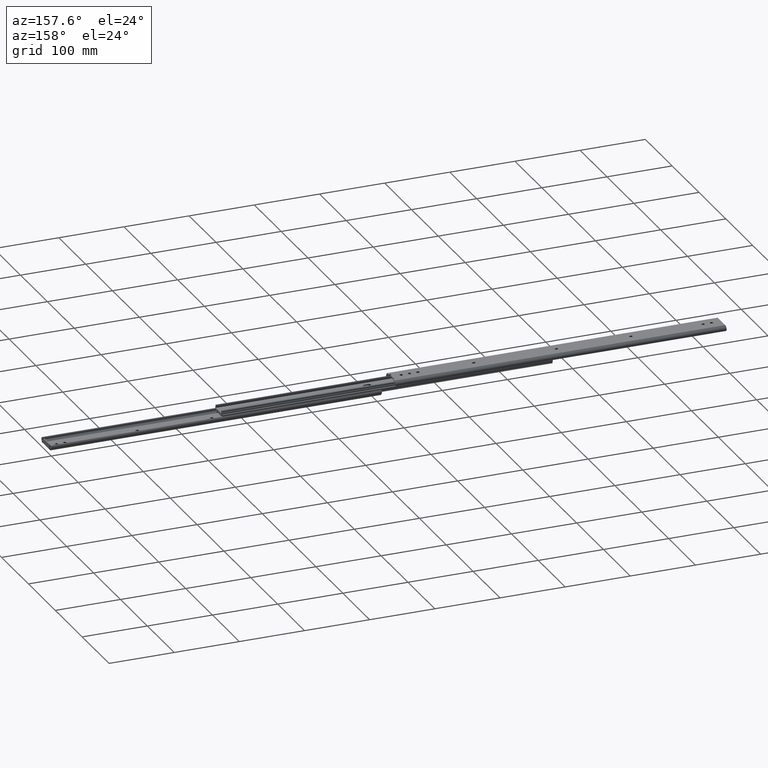
[diagram: clean part render]
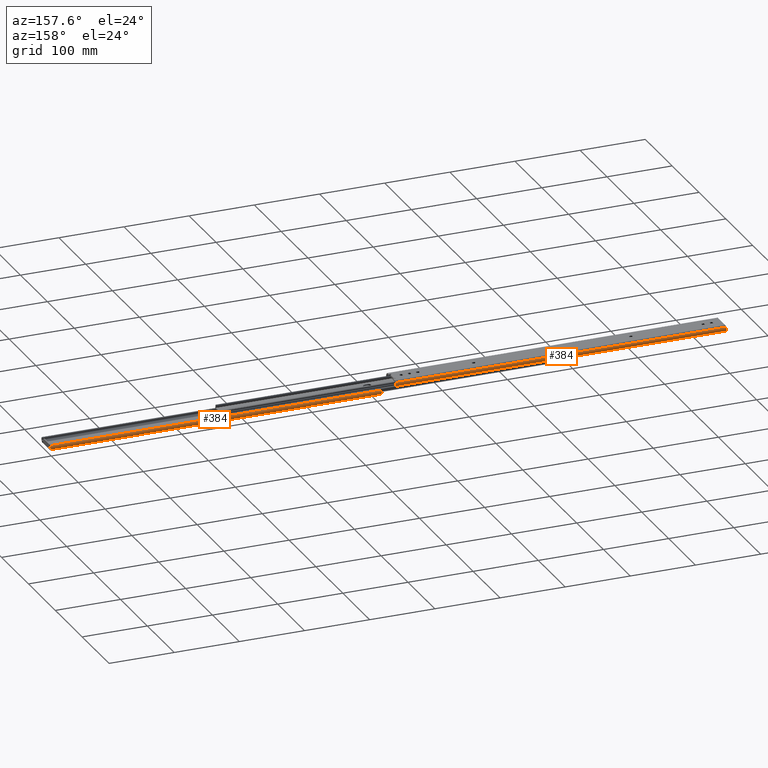
[diagram: same view with one multi-face feature highlighted, each face labeled with its STEP entity id]
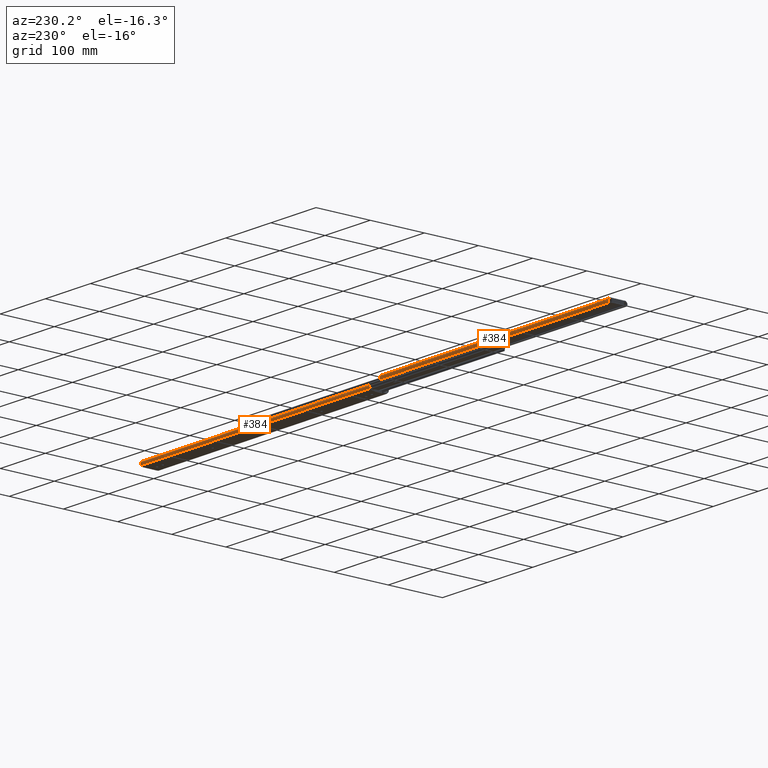
[diagram: same view with one multi-face feature highlighted, each face labeled with its STEP entity id]
A machine part, auxiliary view. The highlighted faces form ONE feature: a constant-radius fillet chain: 2 tangent blend faces with common blend radius 4 mm. The faces share edges in the B-rep.
A second angle (auxiliary view) of the same feature is appended — it is thin or edge-on in the first view.
Their STEP definitions:
[1] entity #384 (Cylinder):
#169 = DIRECTION ( 'NONE',  ( 0.0000000000000000000, 0.0000000000000000000, -1.000000000000000000 ) ) ;
#383 = VERTEX_POINT ( 'NONE', #2851 ) ;
#384 = ADVANCED_FACE ( 'NONE', ( #4599 ), #2652, .T. ) ;
#542 = CARTESIAN_POINT ( 'NONE',  ( 508.0000000000000000, 13.64999999999999700, 5.300000000000091300 ) ) ;
#737 = CARTESIAN_POINT ( 'NONE',  ( 508.0000000000000000, 15.91053091109173300, 8.600000000000021000 ) ) ;
#830 = VECTOR ( 'NONE', #1754, 1000.000000000000000 ) ;
#918 = DIRECTION ( 'NONE',  ( 0.0000000000000000000, 0.0000000000000000000, -1.000000000000000000 ) ) ;
#1031 = EDGE_LOOP ( 'NONE', ( #2301, #3932, #3344, #3224 ) ) ;
#1659 = VERTEX_POINT ( 'NONE', #737 ) ;
#1695 = AXIS2_PLACEMENT_3D ( 'NONE', #542, #3139, #918 ) ;
#1703 = DIRECTION ( 'NONE',  ( -1.000000000000000000, -0.0000000000000000000, -0.0000000000000000000 ) ) ;
#1749 = CARTESIAN_POINT ( 'NONE',  ( 508.0000000000000000, 13.64999999999999700, 5.300000000000091300 ) ) ;
#1754 = DIRECTION ( 'NONE',  ( -1.000000000000000000, -0.0000000000000000000, -0.0000000000000000000 ) ) ;
#1791 = EDGE_CURVE ( 'NONE', #1659, #383, #2912, .T. ) ;
#2160 = DIRECTION ( 'NONE',  ( 0.0000000000000000000, 0.0000000000000000000, 1.000000000000000000 ) ) ;
#2301 = ORIENTED_EDGE ( 'NONE', *, *, #2352, .T. ) ;
#2352 = EDGE_CURVE ( 'NONE', #3727, #383, #3136, .T. ) ;
#2389 = DIRECTION ( 'NONE',  ( 1.000000000000000000, 0.0000000000000000000, 0.0000000000000000000 ) ) ;
#2615 = AXIS2_PLACEMENT_3D ( 'NONE', #4589, #2389, #169 ) ;
#2652 = CYLINDRICAL_SURFACE ( 'NONE', #3099, 4.000000000000095900 ) ;
#2680 = LINE ( 'NONE', #3941, #830 ) ;
#2851 = CARTESIAN_POINT ( 'NONE',  ( 0.0000000000000000000, 15.91053091109173300, 8.600000000000021000 ) ) ;
#2912 = LINE ( 'NONE', #3132, #3759 ) ;
#2942 = EDGE_CURVE ( 'NONE', #4128, #1659, #3752, .T. ) ;
#3099 = AXIS2_PLACEMENT_3D ( 'NONE', #1749, #1703, #2160 ) ;
#3132 = CARTESIAN_POINT ( 'NONE',  ( 508.0000000000000000, 15.91053091109173300, 8.600000000000021000 ) ) ;
#3136 = CIRCLE ( 'NONE', #2615, 4.000000000000095900 ) ;
#3139 = DIRECTION ( 'NONE',  ( 1.000000000000000000, 0.0000000000000000000, 0.0000000000000000000 ) ) ;
#3224 = ORIENTED_EDGE ( 'NONE', *, *, #4529, .T. ) ;
#3344 = ORIENTED_EDGE ( 'NONE', *, *, #2942, .F. ) ;
#3488 = DIRECTION ( 'NONE',  ( -1.000000000000000000, -0.0000000000000000000, -0.0000000000000000000 ) ) ;
#3727 = VERTEX_POINT ( 'NONE', #3788 ) ;
#3752 = CIRCLE ( 'NONE', #1695, 4.000000000000095900 ) ;
#3759 = VECTOR ( 'NONE', #3488, 1000.000000000000000 ) ;
#3788 = CARTESIAN_POINT ( 'NONE',  ( 0.0000000000000000000, 16.48258451996917300, 2.475736390272456500 ) ) ;
#3820 = CARTESIAN_POINT ( 'NONE',  ( 508.0000000000000000, 16.48258451996917300, 2.475736390272456500 ) ) ;
#3932 = ORIENTED_EDGE ( 'NONE', *, *, #1791, .F. ) ;
#3941 = CARTESIAN_POINT ( 'NONE',  ( 508.0000000000000000, 16.48258451996917300, 2.475736390272456500 ) ) ;
#4128 = VERTEX_POINT ( 'NONE', #3820 ) ;
#4529 = EDGE_CURVE ( 'NONE', #4128, #3727, #2680, .T. ) ;
#4589 = CARTESIAN_POINT ( 'NONE',  ( 0.0000000000000000000, 13.64999999999999700, 5.300000000000091300 ) ) ;
#4599 = FACE_OUTER_BOUND ( 'NONE', #1031, .T. ) ;
[2] entity #384 (Cylinder):
#169 = DIRECTION ( 'NONE',  ( 0.0000000000000000000, 0.0000000000000000000, -1.000000000000000000 ) ) ;
#383 = VERTEX_POINT ( 'NONE', #2851 ) ;
#384 = ADVANCED_FACE ( 'NONE', ( #4599 ), #2652, .T. ) ;
#542 = CARTESIAN_POINT ( 'NONE',  ( 508.0000000000000000, 13.64999999999999700, 5.300000000000091300 ) ) ;
#737 = CARTESIAN_POINT ( 'NONE',  ( 508.0000000000000000, 15.91053091109173300, 8.600000000000021000 ) ) ;
#830 = VECTOR ( 'NONE', #1754, 1000.000000000000000 ) ;
#918 = DIRECTION ( 'NONE',  ( 0.0000000000000000000, 0.0000000000000000000, -1.000000000000000000 ) ) ;
#1031 = EDGE_LOOP ( 'NONE', ( #2301, #3932, #3344, #3224 ) ) ;
#1659 = VERTEX_POINT ( 'NONE', #737 ) ;
#1695 = AXIS2_PLACEMENT_3D ( 'NONE', #542, #3139, #918 ) ;
#1703 = DIRECTION ( 'NONE',  ( -1.000000000000000000, -0.0000000000000000000, -0.0000000000000000000 ) ) ;
#1749 = CARTESIAN_POINT ( 'NONE',  ( 508.0000000000000000, 13.64999999999999700, 5.300000000000091300 ) ) ;
#1754 = DIRECTION ( 'NONE',  ( -1.000000000000000000, -0.0000000000000000000, -0.0000000000000000000 ) ) ;
#1791 = EDGE_CURVE ( 'NONE', #1659, #383, #2912, .T. ) ;
#2160 = DIRECTION ( 'NONE',  ( 0.0000000000000000000, 0.0000000000000000000, 1.000000000000000000 ) ) ;
#2301 = ORIENTED_EDGE ( 'NONE', *, *, #2352, .T. ) ;
#2352 = EDGE_CURVE ( 'NONE', #3727, #383, #3136, .T. ) ;
#2389 = DIRECTION ( 'NONE',  ( 1.000000000000000000, 0.0000000000000000000, 0.0000000000000000000 ) ) ;
#2615 = AXIS2_PLACEMENT_3D ( 'NONE', #4589, #2389, #169 ) ;
#2652 = CYLINDRICAL_SURFACE ( 'NONE', #3099, 4.000000000000095900 ) ;
#2680 = LINE ( 'NONE', #3941, #830 ) ;
#2851 = CARTESIAN_POINT ( 'NONE',  ( 0.0000000000000000000, 15.91053091109173300, 8.600000000000021000 ) ) ;
#2912 = LINE ( 'NONE', #3132, #3759 ) ;
#2942 = EDGE_CURVE ( 'NONE', #4128, #1659, #3752, .T. ) ;
#3099 = AXIS2_PLACEMENT_3D ( 'NONE', #1749, #1703, #2160 ) ;
#3132 = CARTESIAN_POINT ( 'NONE',  ( 508.0000000000000000, 15.91053091109173300, 8.600000000000021000 ) ) ;
#3136 = CIRCLE ( 'NONE', #2615, 4.000000000000095900 ) ;
#3139 = DIRECTION ( 'NONE',  ( 1.000000000000000000, 0.0000000000000000000, 0.0000000000000000000 ) ) ;
#3224 = ORIENTED_EDGE ( 'NONE', *, *, #4529, .T. ) ;
#3344 = ORIENTED_EDGE ( 'NONE', *, *, #2942, .F. ) ;
#3488 = DIRECTION ( 'NONE',  ( -1.000000000000000000, -0.0000000000000000000, -0.0000000000000000000 ) ) ;
#3727 = VERTEX_POINT ( 'NONE', #3788 ) ;
#3752 = CIRCLE ( 'NONE', #1695, 4.000000000000095900 ) ;
#3759 = VECTOR ( 'NONE', #3488, 1000.000000000000000 ) ;
#3788 = CARTESIAN_POINT ( 'NONE',  ( 0.0000000000000000000, 16.48258451996917300, 2.475736390272456500 ) ) ;
#3820 = CARTESIAN_POINT ( 'NONE',  ( 508.0000000000000000, 16.48258451996917300, 2.475736390272456500 ) ) ;
#3932 = ORIENTED_EDGE ( 'NONE', *, *, #1791, .F. ) ;
#3941 = CARTESIAN_POINT ( 'NONE',  ( 508.0000000000000000, 16.48258451996917300, 2.475736390272456500 ) ) ;
#4128 = VERTEX_POINT ( 'NONE', #3820 ) ;
#4529 = EDGE_CURVE ( 'NONE', #4128, #3727, #2680, .T. ) ;
#4589 = CARTESIAN_POINT ( 'NONE',  ( 0.0000000000000000000, 13.64999999999999700, 5.300000000000091300 ) ) ;
#4599 = FACE_OUTER_BOUND ( 'NONE', #1031, .T. ) ;